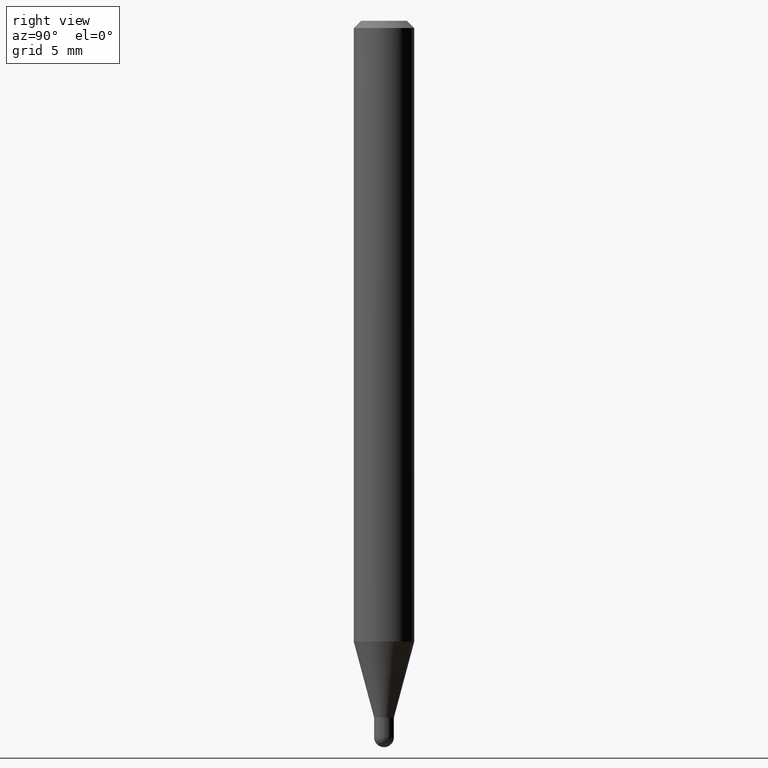
[diagram: clean part render]
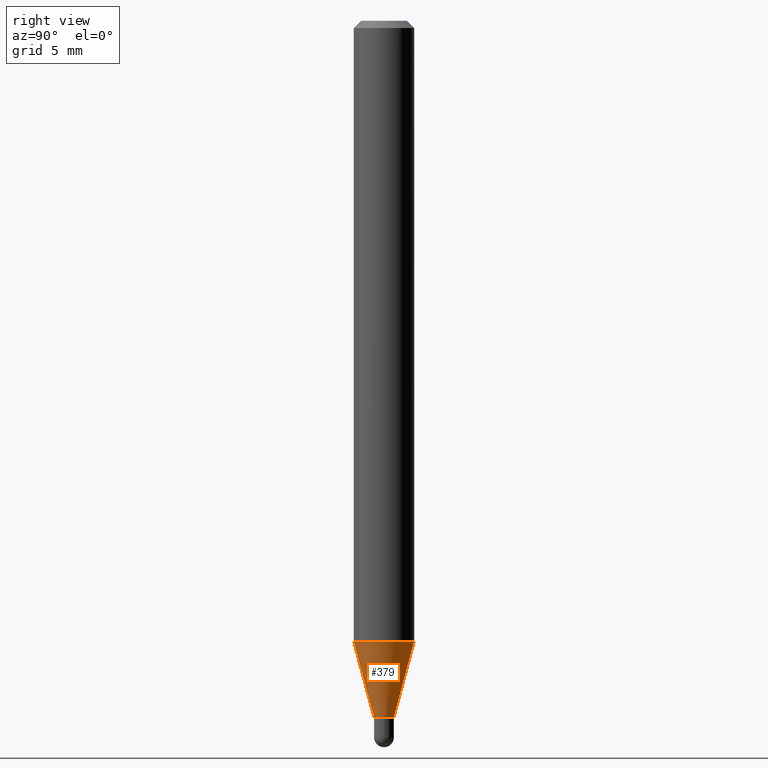
[diagram: same view with one face highlighted and labeled with its STEP entity id]
A machine part, right view. The second image highlights one B-rep face of the part: STEP entity #379.
In plain terms, the highlighted conical surface has half-angle 15 deg.
Its self-contained STEP definition (entity closure, byte-faithful):
#4 = CARTESIAN_POINT ( 'NONE',  ( -1.431507348925308261E-16, -0.02050000000000467074, -1.438500000000000334 ) ) ;
#16 = EDGE_CURVE ( 'NONE', #264, #310, #357, .T. ) ;
#26 = VECTOR ( 'NONE', #317, 39.37007874015748143 ) ;
#46 = LINE ( 'NONE', #4, #486 ) ;
#47 = ORIENTED_EDGE ( 'NONE', *, *, #293, .T. ) ;
#73 = CARTESIAN_POINT ( 'NONE',  ( -4.364351673553604601E-16, -0.06250000000000449640, -1.281753866082110838 ) ) ;
#93 = DIRECTION ( 'NONE',  ( -2.445460596337778578E-29, 3.491493095811837758E-15, 1.000000000000000000 ) ) ;
#100 = DIRECTION ( 'NONE',  ( -6.982962677686266711E-15, -1.000000000000000000, 0.000000000000000000 ) ) ;
#128 = CARTESIAN_POINT ( 'NONE',  ( 3.134478573707413274E-29, -4.475234773955820986E-15, -1.281753866082111060 ) ) ;
#130 = CARTESIAN_POINT ( 'NONE',  ( 2.948752353404736400E-16, 0.02049999999999462322, -1.438500000000000334 ) ) ;
#139 = ORIENTED_EDGE ( 'NONE', *, *, #16, .T. ) ;
#144 = DIRECTION ( 'NONE',  ( -2.445460596337778578E-29, 3.491493095811837758E-15, 1.000000000000000000 ) ) ;
#149 = CARTESIAN_POINT ( 'NONE',  ( 1.456612608308531833E-16, 0.02049999999999462322, -1.438500000000000334 ) ) ;
#163 = DIRECTION ( 'NONE',  ( -1.807323732225378654E-15, -0.2588190451025251249, 0.9659258262890670910 ) ) ;
#183 = EDGE_CURVE ( 'NONE', #339, #341, #46, .T. ) ;
#210 = DIRECTION ( 'NONE',  ( -2.445460596337778578E-29, 3.491493095811837758E-15, 1.000000000000000000 ) ) ;
#211 = DIRECTION ( 'NONE',  ( -6.982962677686266711E-15, -1.000000000000000000, 0.000000000000000000 ) ) ;
#214 = CIRCLE ( 'NONE', #343, 0.06250000000000000000 ) ;
#215 = CONICAL_SURFACE ( 'NONE', #443, 0.02049999999999964698, 0.2617993877991574569 ) ;
#219 = AXIS2_PLACEMENT_3D ( 'NONE', #251, #210, #211 ) ;
#231 = EDGE_LOOP ( 'NONE', ( #47, #139, #272, #468 ) ) ;
#249 = EDGE_CURVE ( 'NONE', #341, #310, #214, .T. ) ;
#251 = CARTESIAN_POINT ( 'NONE',  ( 3.517795067831895441E-29, -5.022512818325329476E-15, -1.438500000000000334 ) ) ;
#264 = VERTEX_POINT ( 'NONE', #130 ) ;
#272 = ORIENTED_EDGE ( 'NONE', *, *, #249, .F. ) ;
#293 = EDGE_CURVE ( 'NONE', #339, #264, #402, .T. ) ;
#294 = CARTESIAN_POINT ( 'NONE',  ( 3.517795067831895441E-29, -5.022512818325329476E-15, -1.438500000000000334 ) ) ;
#310 = VERTEX_POINT ( 'NONE', #483 ) ;
#317 = DIRECTION ( 'NONE',  ( 1.839019923739649619E-15, 0.2588190451025318972, 0.9659258262890653146 ) ) ;
#336 = FACE_OUTER_BOUND ( 'NONE', #231, .T. ) ;
#339 = VERTEX_POINT ( 'NONE', #340 ) ;
#340 = CARTESIAN_POINT ( 'NONE',  ( -1.431507348925308261E-16, -0.02050000000000467074, -1.438500000000000334 ) ) ;
#341 = VERTEX_POINT ( 'NONE', #73 ) ;
#343 = AXIS2_PLACEMENT_3D ( 'NONE', #128, #93, #444 ) ;
#357 = LINE ( 'NONE', #149, #26 ) ;
#379 = ADVANCED_FACE ( 'NONE', ( #336 ), #215, .T. ) ;
#402 = CIRCLE ( 'NONE', #219, 0.02049999999999964698 ) ;
#443 = AXIS2_PLACEMENT_3D ( 'NONE', #294, #144, #100 ) ;
#444 = DIRECTION ( 'NONE',  ( -6.982962677686265922E-15, -1.000000000000000000, 4.370956789862821150E-15 ) ) ;
#468 = ORIENTED_EDGE ( 'NONE', *, *, #183, .F. ) ;
#483 = CARTESIAN_POINT ( 'NONE',  ( 4.440892098500937762E-16, 0.06249999999999551054, -1.281753866082111282 ) ) ;
#486 = VECTOR ( 'NONE', #163, 39.37007874015748854 ) ;